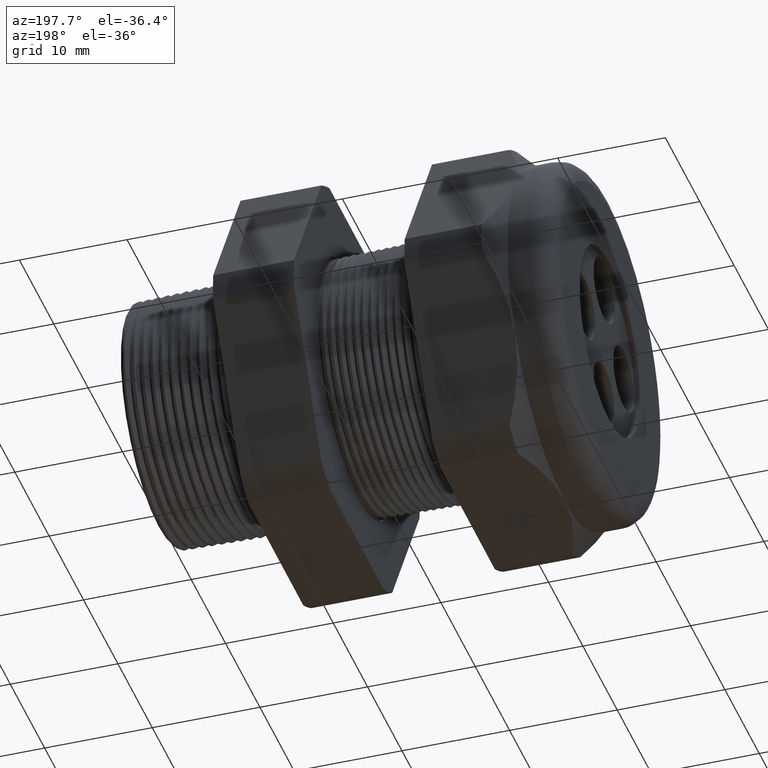
[diagram: clean part render]
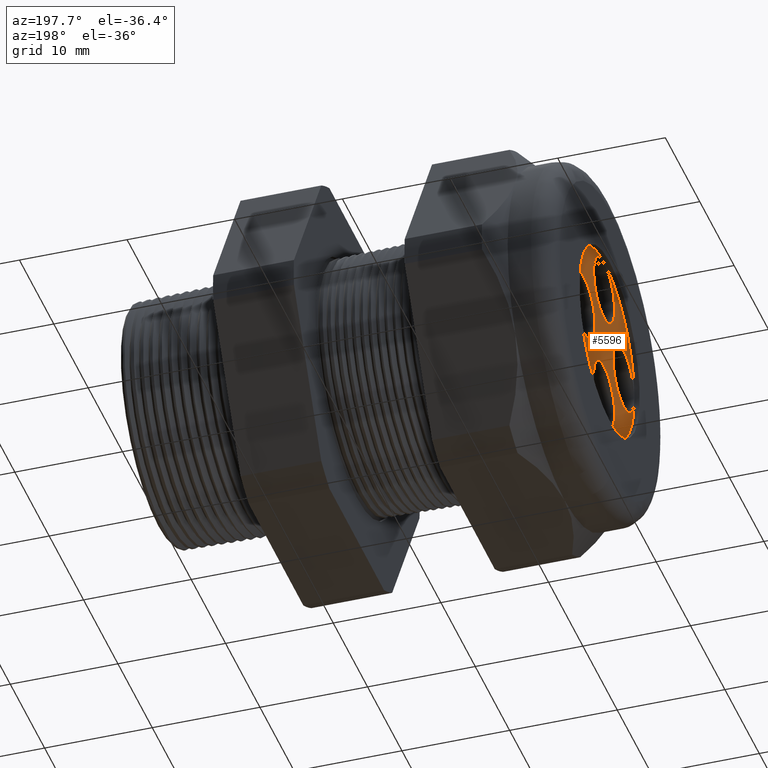
[diagram: same view with one face highlighted and labeled with its STEP entity id]
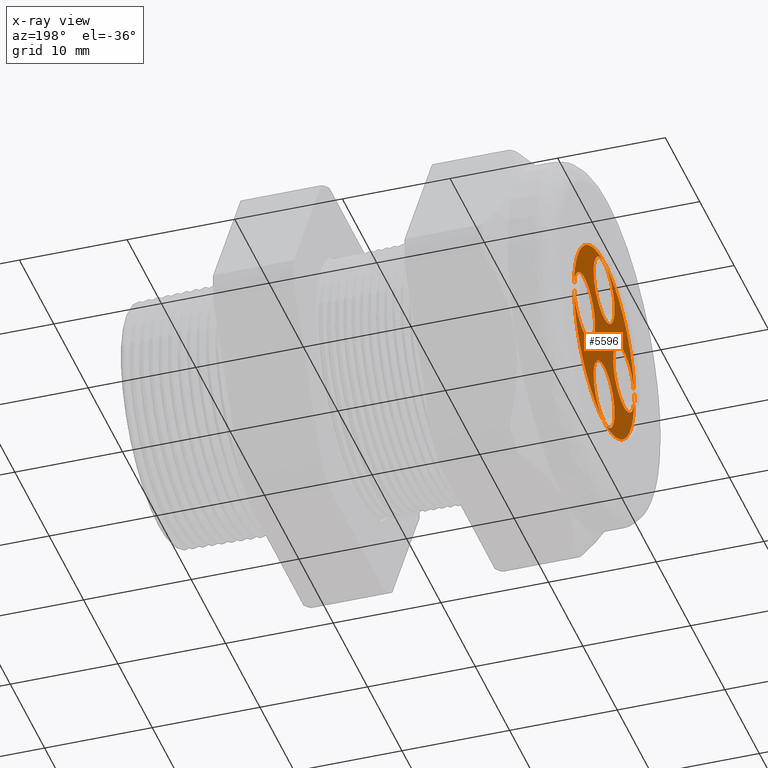
[diagram: x-ray of the same camera — body ghosted, the highlighted face saturated]
A machine part, auxiliary view. The second image highlights one B-rep face of the part: STEP entity #5596.
The next image is the same camera in x-ray: the body ghosted, the highlighted face saturated — about 0% of this face is hidden behind the body in this view.
In plain terms, the highlighted planar face has unit normal (-1, 0, 0).
Its self-contained STEP definition (entity closure, byte-faithful):
#4 = EDGE_CURVE ( 'NONE', #41, #65, #789, .T. ) ;
#16 = EDGE_CURVE ( 'NONE', #65, #41, #825, .T. ) ;
#20 = VERTEX_POINT ( 'NONE', #813 ) ;
#30 = VERTEX_POINT ( 'NONE', #802 ) ;
#39 = EDGE_CURVE ( 'NONE', #20, #30, #848, .T. ) ;
#41 = VERTEX_POINT ( 'NONE', #837 ) ;
#65 = VERTEX_POINT ( 'NONE', #917 ) ;
#785 = DIRECTION ( 'NONE',  ( 0.0000000000000000000, -6.982966722218764900E-015, -1.000000000000000000 ) ) ;
#786 = DIRECTION ( 'NONE',  ( -1.000000000000000000, 0.0000000000000000000, 0.0000000000000000000 ) ) ;
#787 = CARTESIAN_POINT ( 'NONE',  ( -1.509999999999999800, 1.567815688472556500E-015, 0.2245199999999999400 ) ) ;
#788 = AXIS2_PLACEMENT_3D ( 'NONE', #787, #786, #785 ) ;
#789 = CIRCLE ( 'NONE', #788, 0.1200000000000000000 ) ;
#802 = CARTESIAN_POINT ( 'NONE',  ( -1.509999999999999800, 0.2245199999999999400, 0.1199999999999976500 ) ) ;
#813 = CARTESIAN_POINT ( 'NONE',  ( -1.509999999999999800, 0.2245199999999999400, -0.1200000000000023500 ) ) ;
#821 = DIRECTION ( 'NONE',  ( 0.0000000000000000000, -6.982966722218764900E-015, -1.000000000000000000 ) ) ;
#822 = DIRECTION ( 'NONE',  ( -1.000000000000000000, 0.0000000000000000000, 0.0000000000000000000 ) ) ;
#823 = CARTESIAN_POINT ( 'NONE',  ( -1.509999999999999800, 1.567815688472556500E-015, 0.2245199999999999400 ) ) ;
#824 = AXIS2_PLACEMENT_3D ( 'NONE', #823, #822, #821 ) ;
#825 = CIRCLE ( 'NONE', #824, 0.1200000000000000000 ) ;
#837 = CARTESIAN_POINT ( 'NONE',  ( -1.509999999999999800, 1.567815688472556500E-015, 0.3445199999999999400 ) ) ;
#844 = DIRECTION ( 'NONE',  ( 0.0000000000000000000, -1.000000000000000000, 1.047445008332814600E-014 ) ) ;
#845 = DIRECTION ( 'NONE',  ( -1.000000000000000000, 0.0000000000000000000, 0.0000000000000000000 ) ) ;
#846 = CARTESIAN_POINT ( 'NONE',  ( -1.509999999999999800, 0.2245199999999999400, -2.351723532708834800E-015 ) ) ;
#847 = AXIS2_PLACEMENT_3D ( 'NONE', #846, #845, #844 ) ;
#848 = CIRCLE ( 'NONE', #847, 0.1200000000000000000 ) ;
#917 = CARTESIAN_POINT ( 'NONE',  ( -1.509999999999999800, 1.582511450062324600E-015, 0.1045199999999999500 ) ) ;
#1956 = DIRECTION ( 'NONE',  ( 0.0000000000000000000, 1.000000000000000000, -3.491483361109382500E-015 ) ) ;
#1957 = DIRECTION ( 'NONE',  ( -1.000000000000000000, 0.0000000000000000000, 0.0000000000000000000 ) ) ;
#1958 = CARTESIAN_POINT ( 'NONE',  ( -1.509999999999999800, -0.2245199999999999400, 7.839078442362782600E-016 ) ) ;
#1959 = AXIS2_PLACEMENT_3D ( 'NONE', #1958, #1957, #1956 ) ;
#1960 = CIRCLE ( 'NONE', #1959, 0.1200000000000000000 ) ;
#1995 = CARTESIAN_POINT ( 'NONE',  ( -1.509999999999999800, 1.469576158976823700E-017, -0.3445199999999999400 ) ) ;
#2553 = CIRCLE ( 'NONE', #2614, 0.1200000000000000000 ) ;
#2558 = CARTESIAN_POINT ( 'NONE',  ( -1.509999999999999800, -0.2245199999999999400, 7.839078442362782600E-016 ) ) ;
#2612 = DIRECTION ( 'NONE',  ( 0.0000000000000000000, 1.000000000000000000, -3.491483361109382500E-015 ) ) ;
#2613 = DIRECTION ( 'NONE',  ( -1.000000000000000000, 0.0000000000000000000, 0.0000000000000000000 ) ) ;
#2614 = AXIS2_PLACEMENT_3D ( 'NONE', #2558, #2613, #2612 ) ;
#2641 = DIRECTION ( 'NONE',  ( 0.0000000000000000000, 0.0000000000000000000, 1.000000000000000000 ) ) ;
#2642 = DIRECTION ( 'NONE',  ( -1.000000000000000000, 0.0000000000000000000, 0.0000000000000000000 ) ) ;
#2643 = CARTESIAN_POINT ( 'NONE',  ( -1.509999999999999800, 0.0000000000000000000, -0.2245199999999999400 ) ) ;
#2644 = AXIS2_PLACEMENT_3D ( 'NONE', #2643, #2642, #2641 ) ;
#2645 = CIRCLE ( 'NONE', #2644, 0.1200000000000000000 ) ;
#4022 = DIRECTION ( 'NONE',  ( 0.0000000000000000000, 0.0000000000000000000, 1.000000000000000000 ) ) ;
#4023 = DIRECTION ( 'NONE',  ( -1.000000000000000000, 0.0000000000000000000, 0.0000000000000000000 ) ) ;
#4024 = CARTESIAN_POINT ( 'NONE',  ( -1.509999999999999800, 0.0000000000000000000, 0.0000000000000000000 ) ) ;
#4025 = AXIS2_PLACEMENT_3D ( 'NONE', #4024, #4023, #4022 ) ;
#4026 = CIRCLE ( 'NONE', #4025, 0.3449999999999999200 ) ;
#4034 = DIRECTION ( 'NONE',  ( 0.0000000000000000000, -1.000000000000000000, 1.047445008332814600E-014 ) ) ;
#4035 = DIRECTION ( 'NONE',  ( -1.000000000000000000, 0.0000000000000000000, 0.0000000000000000000 ) ) ;
#4036 = CARTESIAN_POINT ( 'NONE',  ( -1.509999999999999800, 0.2245199999999999400, -2.351723532708834800E-015 ) ) ;
#4037 = AXIS2_PLACEMENT_3D ( 'NONE', #4036, #4035, #4034 ) ;
#4038 = CIRCLE ( 'NONE', #4037, 0.1200000000000000000 ) ;
#4039 = DIRECTION ( 'NONE',  ( 0.0000000000000000000, 0.0000000000000000000, 1.000000000000000000 ) ) ;
#4040 = DIRECTION ( 'NONE',  ( -1.000000000000000000, 0.0000000000000000000, 0.0000000000000000000 ) ) ;
#4041 = CARTESIAN_POINT ( 'NONE',  ( -1.509999999999999800, 0.0000000000000000000, 0.0000000000000000000 ) ) ;
#4042 = AXIS2_PLACEMENT_3D ( 'NONE', #4041, #4040, #4039 ) ;
#4043 = PLANE ( 'NONE',  #4042 ) ;
#4044 = FACE_OUTER_BOUND ( 'NONE', #4862, .T. ) ;
#4045 = FACE_BOUND ( 'NONE', #4863, .T. ) ;
#4046 = FACE_BOUND ( 'NONE', #4843, .T. ) ;
#4047 = FACE_BOUND ( 'NONE', #5594, .T. ) ;
#4048 = FACE_BOUND ( 'NONE', #5494, .T. ) ;
#4187 = CARTESIAN_POINT ( 'NONE',  ( -1.509999999999999800, -0.2245199999999999400, -0.1199999999999992200 ) ) ;
#4215 = CARTESIAN_POINT ( 'NONE',  ( -1.509999999999999800, -0.2245199999999999400, 0.1200000000000007900 ) ) ;
#4244 = CARTESIAN_POINT ( 'NONE',  ( -1.509999999999999800, 0.0000000000000000000, 0.3449999999999999200 ) ) ;
#4266 = CARTESIAN_POINT ( 'NONE',  ( -1.509999999999999800, 0.0000000000000000000, -0.1045199999999999500 ) ) ;
#4267 = DIRECTION ( 'NONE',  ( 0.0000000000000000000, 0.0000000000000000000, 1.000000000000000000 ) ) ;
#4268 = DIRECTION ( 'NONE',  ( -1.000000000000000000, 0.0000000000000000000, 0.0000000000000000000 ) ) ;
#4269 = CARTESIAN_POINT ( 'NONE',  ( -1.509999999999999800, 0.0000000000000000000, -0.2245199999999999400 ) ) ;
#4270 = AXIS2_PLACEMENT_3D ( 'NONE', #4269, #4268, #4267 ) ;
#4271 = CIRCLE ( 'NONE', #4270, 0.1200000000000000000 ) ;
#4281 = DIRECTION ( 'NONE',  ( 0.0000000000000000000, 0.0000000000000000000, 1.000000000000000000 ) ) ;
#4282 = DIRECTION ( 'NONE',  ( -1.000000000000000000, 0.0000000000000000000, 0.0000000000000000000 ) ) ;
#4283 = CARTESIAN_POINT ( 'NONE',  ( -1.509999999999999800, 0.0000000000000000000, 0.0000000000000000000 ) ) ;
#4284 = AXIS2_PLACEMENT_3D ( 'NONE', #4283, #4282, #4281 ) ;
#4285 = CIRCLE ( 'NONE', #4284, 0.3449999999999999200 ) ;
#4320 = CARTESIAN_POINT ( 'NONE',  ( -1.509999999999999800, 4.225031457058367800E-017, -0.3449999999999999200 ) ) ;
#4530 = EDGE_CURVE ( 'NONE', #5689, #5707, #1960, .T. ) ;
#4545 = VERTEX_POINT ( 'NONE', #1995 ) ;
#4843 = EDGE_LOOP ( 'NONE', ( #4844, #4852 ) ) ;
#4844 = ORIENTED_EDGE ( 'NONE', *, *, #4847, .F. ) ;
#4846 = ORIENTED_EDGE ( 'NONE', *, *, #16, .F. ) ;
#4847 = EDGE_CURVE ( 'NONE', #5707, #5689, #2553, .T. ) ;
#4852 = ORIENTED_EDGE ( 'NONE', *, *, #4530, .F. ) ;
#4857 = ORIENTED_EDGE ( 'NONE', *, *, #5737, .T. ) ;
#4858 = ORIENTED_EDGE ( 'NONE', *, *, #5601, .T. ) ;
#4862 = EDGE_LOOP ( 'NONE', ( #4858, #4857 ) ) ;
#4863 = EDGE_LOOP ( 'NONE', ( #4866, #4867 ) ) ;
#4865 = EDGE_CURVE ( 'NONE', #5712, #4545, #2645, .T. ) ;
#4866 = ORIENTED_EDGE ( 'NONE', *, *, #4865, .F. ) ;
#4867 = ORIENTED_EDGE ( 'NONE', *, *, #5710, .F. ) ;
#5494 = EDGE_LOOP ( 'NONE', ( #5598, #5589 ) ) ;
#5589 = ORIENTED_EDGE ( 'NONE', *, *, #39, .F. ) ;
#5590 = ORIENTED_EDGE ( 'NONE', *, *, #4, .F. ) ;
#5594 = EDGE_LOOP ( 'NONE', ( #5590, #4846 ) ) ;
#5596 = ADVANCED_FACE ( 'NONE', ( #4048, #4047, #4046, #4045, #4044 ), #4043, .T. ) ;
#5597 = EDGE_CURVE ( 'NONE', #30, #20, #4038, .T. ) ;
#5598 = ORIENTED_EDGE ( 'NONE', *, *, #5597, .F. ) ;
#5601 = EDGE_CURVE ( 'NONE', #5720, #5749, #4026, .T. ) ;
#5689 = VERTEX_POINT ( 'NONE', #4187 ) ;
#5707 = VERTEX_POINT ( 'NONE', #4215 ) ;
#5710 = EDGE_CURVE ( 'NONE', #4545, #5712, #4271, .T. ) ;
#5712 = VERTEX_POINT ( 'NONE', #4266 ) ;
#5720 = VERTEX_POINT ( 'NONE', #4244 ) ;
#5737 = EDGE_CURVE ( 'NONE', #5749, #5720, #4285, .T. ) ;
#5749 = VERTEX_POINT ( 'NONE', #4320 ) ;